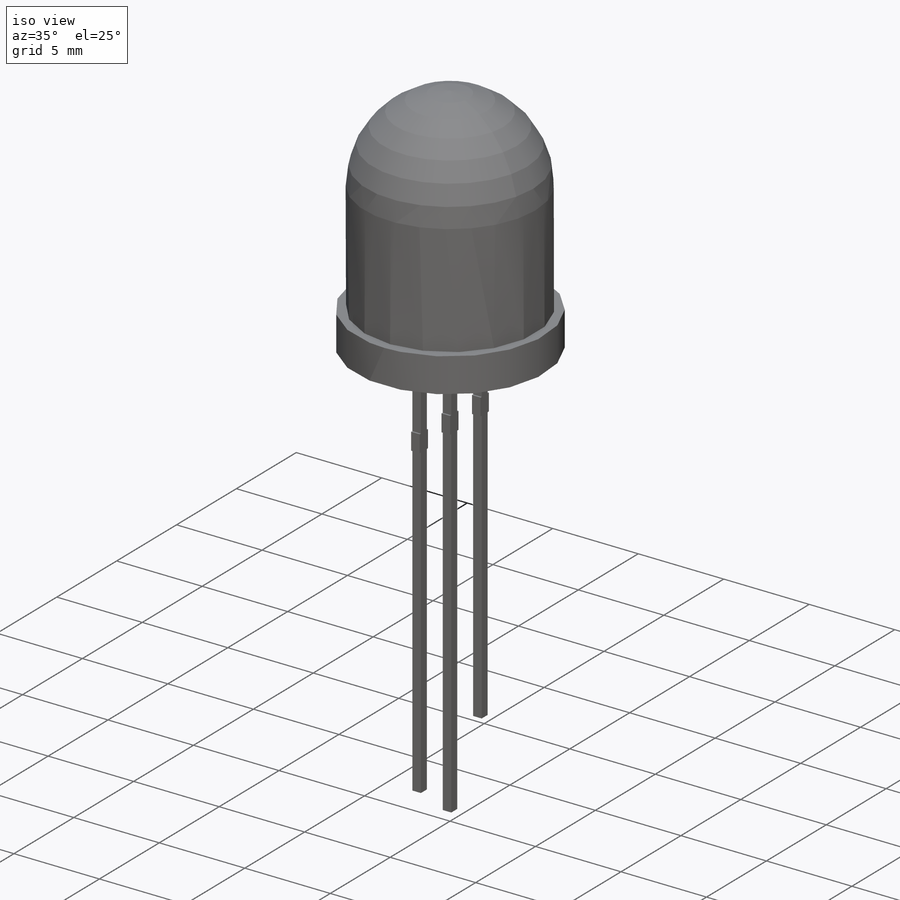
[diagram: iso view]
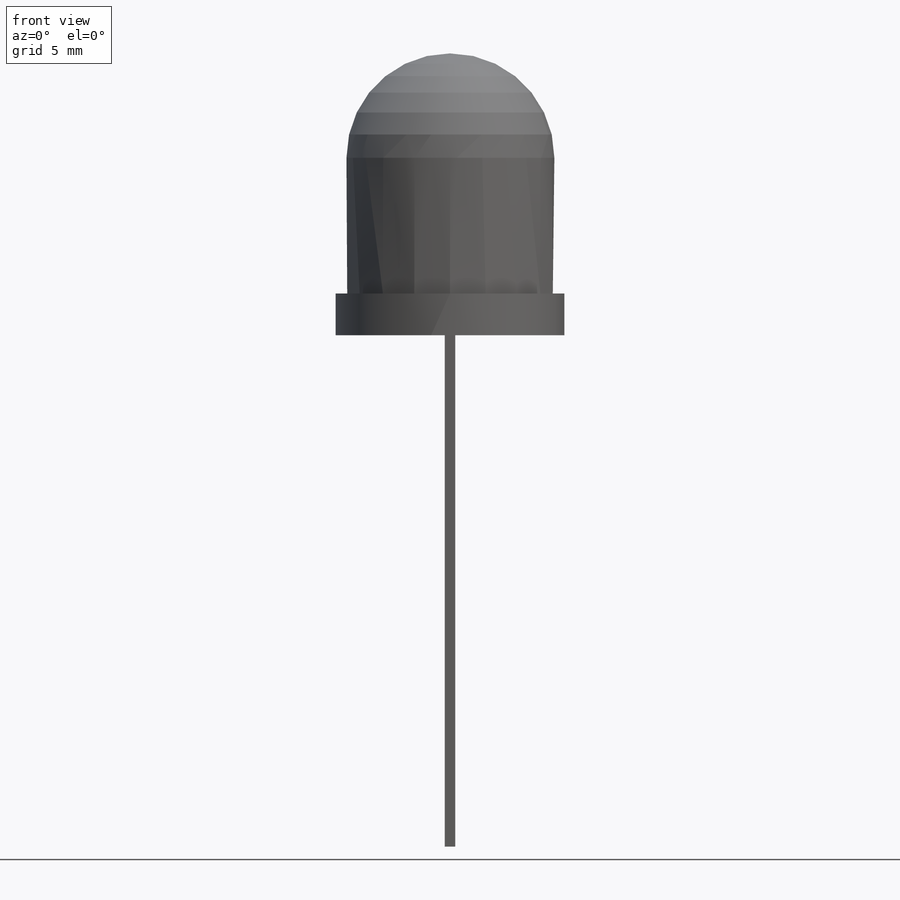
[diagram: front view]
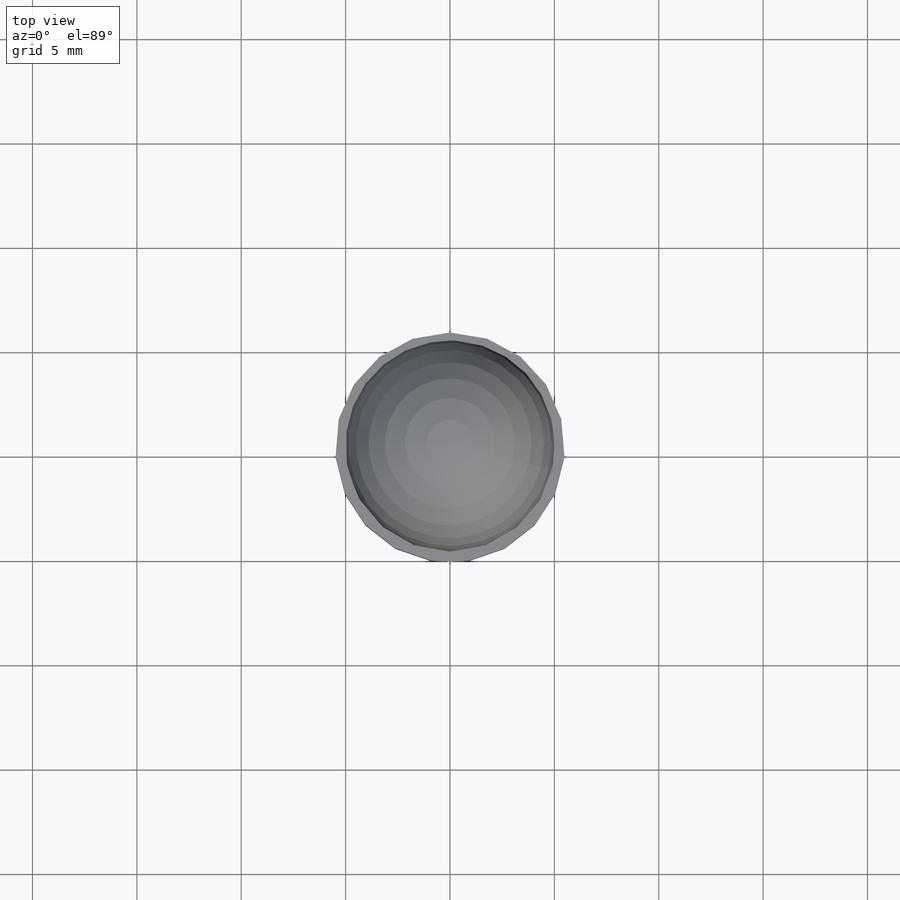
[diagram: top view]
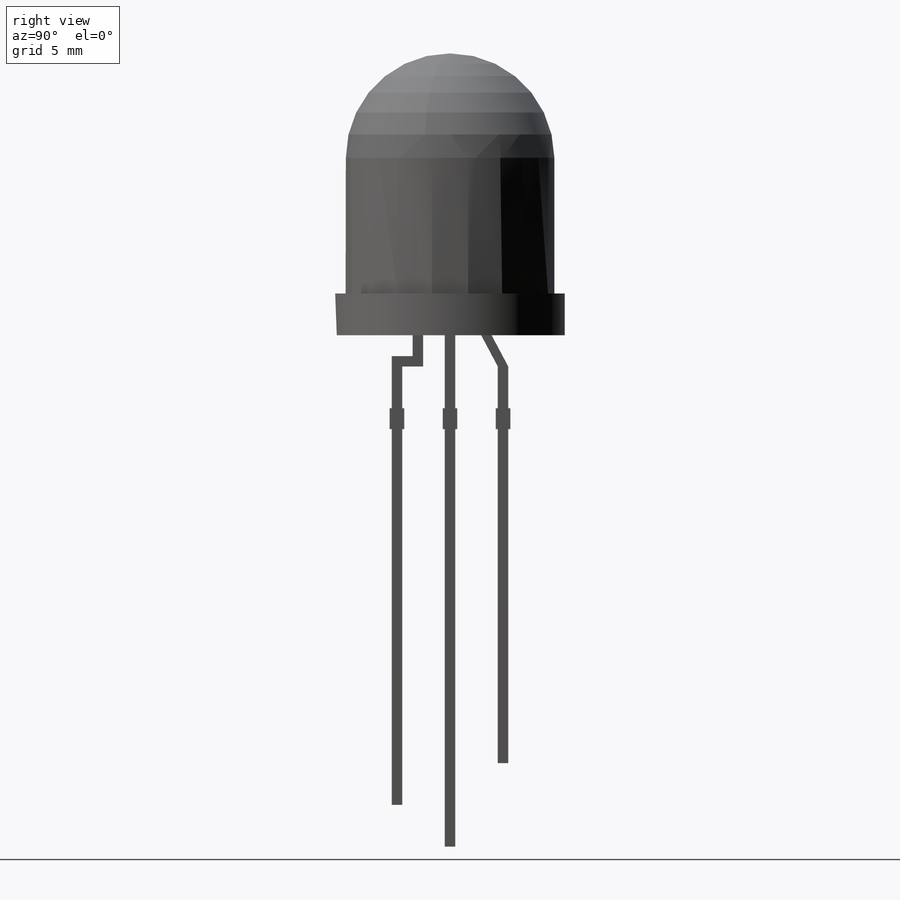
[diagram: right view]
SOLIDWORKS PART (.sldprt)
format: sldprt  version: not decoded by parser v0  size: 693,760 bytes
history: native  units: mm
features: sketch x4, extrude x2, material x1, revolve x1, plane x1, cut_extrude x1 (+12 scaffold rows collapsed)
feature tree (22):
  scaffold x12  (default folders/planes/origin — collapsed)
  material  "Material <not specified>"
  sketch  "Sketch1"  dims[D3=2.5mm D1=5.0mm D2=11.5mm]
  revolve  "Revolve1"  Angle=360deg
  plane  "Plane1"  Offset=2mm
  sketch  "Sketch2"  dims[D1=11.0mm D2=11.0mm]
  extrude  "Extrude1"  [1 undecoded]
  sketch  "Sketch3"  dims[c1.D1=0.5mm c1.D2=0.5mm c1.D3=2.35mm c1.D4=1.0mm c1.D5=0.5mm c1.D6=~2.878191mm c2.D6=62.0deg c2.D7=2.54mm c2.D8=~2.526116mm c3.D7=2.54mm c3.D8=2.54mm c3.D9=0.5mm c3.D10=24.5mm c3.D11=0.5mm c3.D12=~9.567803mm c4.D11=2.0mm c4.D12=4.0mm c4.D13=0.7mm c4.D14=1.0mm c4.D15=5.0mm c4.D16=10.95mm c4.D3=15.0mm c5.D16=5.45mm c6.D16=90.0deg c7.D16=5.0mm c7.D17=5.0mm c8.D16=~1.488892mm c9.D16=90.0deg c10.D16=0.7mm c10.D17=0.7mm c10.D15=17.0mm]
  extrude  "Extrude2"  Depth=0.5mm
  sketch  "Sketch4"
  cut_extrude  "Cut-Extrude1"  Depth=0.01mm
decode coverage: 6 of 8 modeling features carry decoded parameters
note: ~ marks probable driven/reference dimensions
note: 1 parameter value undecoded
note: suppression state not decoded; provenance and decode notes live in map.json
